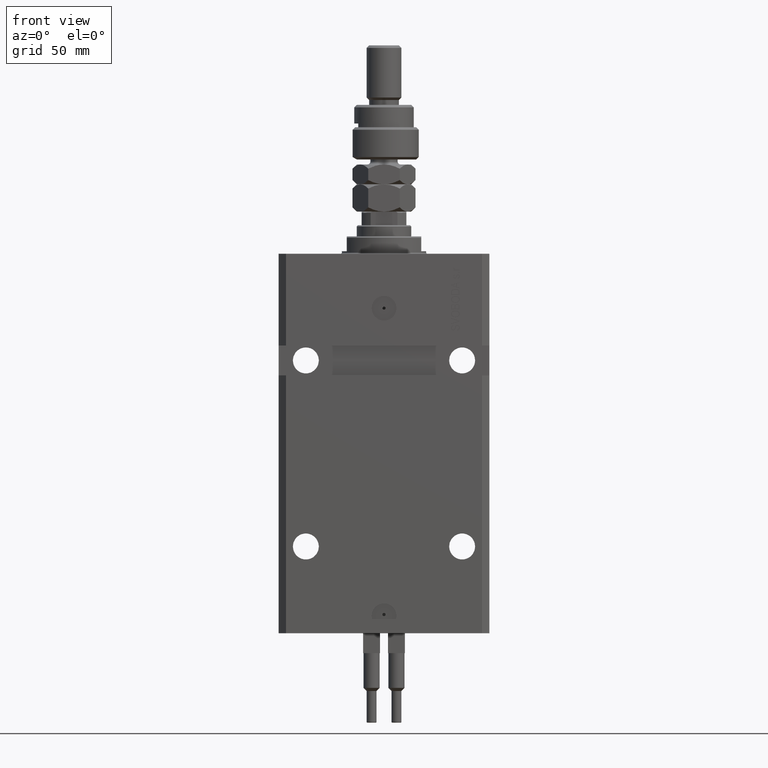
[diagram: clean part render]
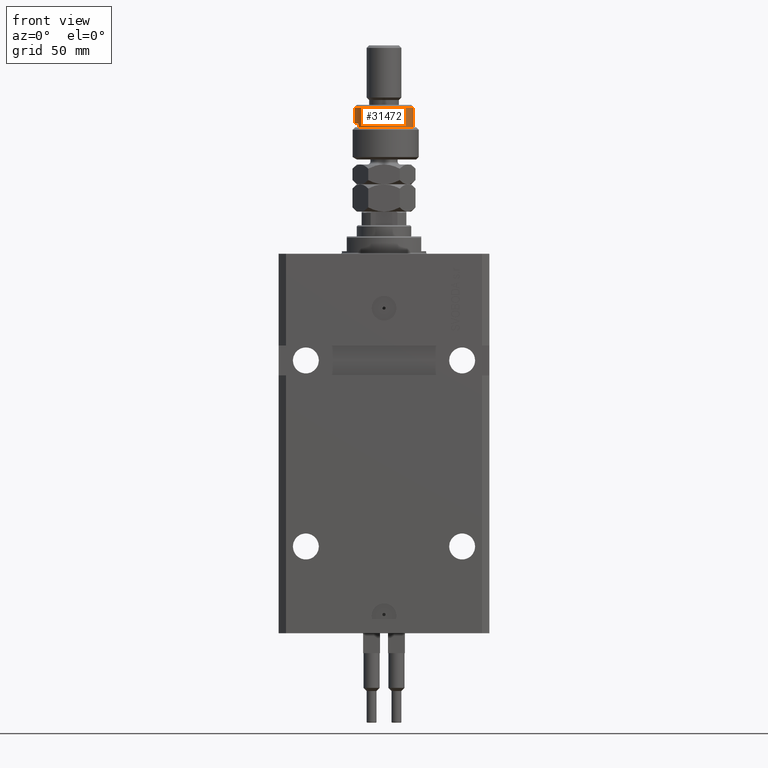
[diagram: same view with one face highlighted and labeled with its STEP entity id]
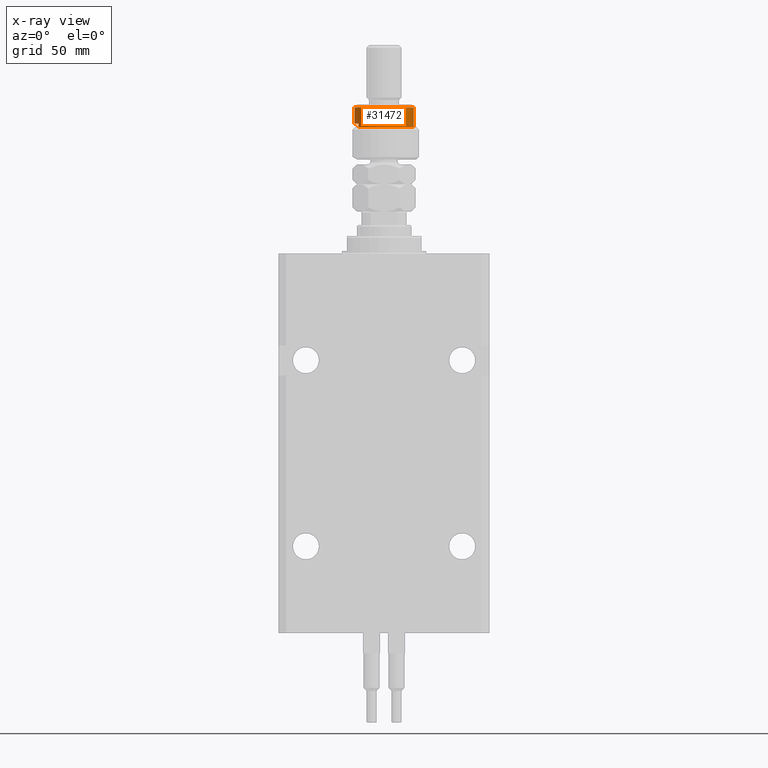
[diagram: x-ray of the same camera — body ghosted, the highlighted face saturated]
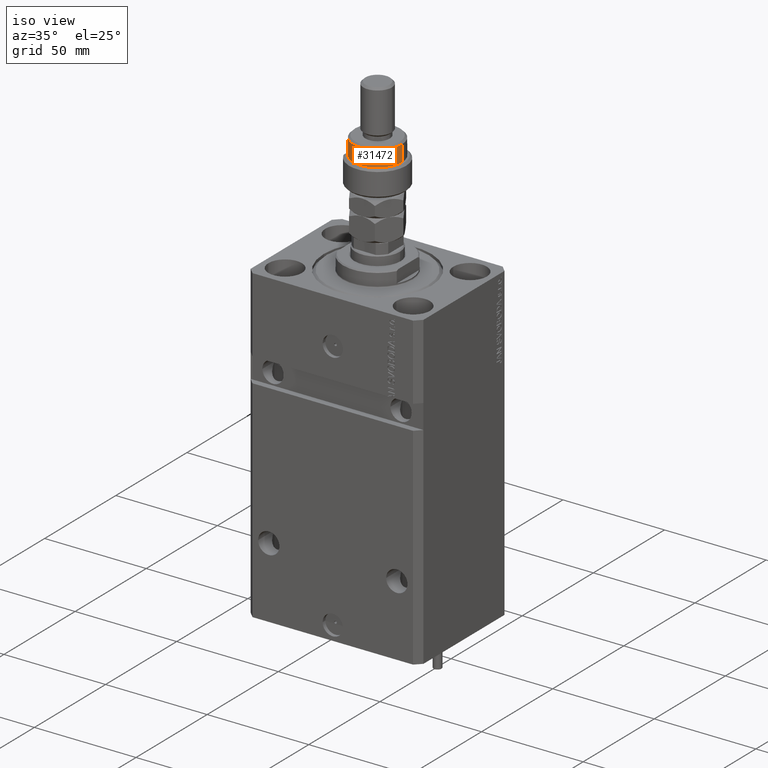
[diagram: same view with one face highlighted and labeled with its STEP entity id]
A machine part, front view. The second image highlights one B-rep face of the part: STEP entity #31472.
The next image is the same camera in x-ray: the body ghosted, the highlighted face saturated — about 0% of this face is hidden behind the body in this view.
A second angle (iso view) of the same face is appended — the face is thin or edge-on in the first view.
In plain terms, the highlighted cylindrical surface (edge-blend (fillet) strip) has radius 12 mm, axis along (-0, -0, -1).
Its self-contained STEP definition (entity closure, byte-faithful):
#60 = FACE_OUTER_BOUND ( 'NONE', #16092, .T. ) ;
#1394 = CARTESIAN_POINT ( 'NONE',  ( 12.00000000000000178, 1.469576158976824144E-15, 22.00000000000000000 ) ) ;
#3241 = AXIS2_PLACEMENT_3D ( 'NONE', #33666, #41815, #33928 ) ;
#3337 = ORIENTED_EDGE ( 'NONE', *, *, #49781, .T. ) ;
#4048 = CIRCLE ( 'NONE', #3241, 12.00000000000000178 ) ;
#4560 = DIRECTION ( 'NONE',  ( -0.000000000000000000, -0.000000000000000000, -1.000000000000000000 ) ) ;
#6366 = VECTOR ( 'NONE', #4560, 1000.000000000000000 ) ;
#10732 = VERTEX_POINT ( 'NONE', #46467 ) ;
#11294 = DIRECTION ( 'NONE',  ( 0.000000000000000000, 0.000000000000000000, -1.000000000000000000 ) ) ;
#11381 = DIRECTION ( 'NONE',  ( -1.000000000000000000, 0.000000000000000000, 0.000000000000000000 ) ) ;
#11597 = AXIS2_PLACEMENT_3D ( 'NONE', #23607, #20204, #48195 ) ;
#13425 = LINE ( 'NONE', #1394, #6366 ) ;
#13644 = ORIENTED_EDGE ( 'NONE', *, *, #30587, .T. ) ;
#13715 = DIRECTION ( 'NONE',  ( -0.000000000000000000, -0.000000000000000000, -1.000000000000000000 ) ) ;
#14792 = CIRCLE ( 'NONE', #45724, 12.00000000000000178 ) ;
#15002 = EDGE_CURVE ( 'NONE', #46389, #24598, #37464, .T. ) ;
#16092 = EDGE_LOOP ( 'NONE', ( #41835, #16229, #29043, #18883, #3337, #13644 ) ) ;
#16229 = ORIENTED_EDGE ( 'NONE', *, *, #24951, .T. ) ;
#18883 = ORIENTED_EDGE ( 'NONE', *, *, #15002, .F. ) ;
#20204 = DIRECTION ( 'NONE',  ( -0.000000000000000000, -0.000000000000000000, -1.000000000000000000 ) ) ;
#22090 = CARTESIAN_POINT ( 'NONE',  ( -12.00000000000000178, 0.000000000000000000, 22.00000000000000000 ) ) ;
#22902 = EDGE_CURVE ( 'NONE', #40850, #26178, #13425, .T. ) ;
#23607 = CARTESIAN_POINT ( 'NONE',  ( 0.000000000000000000, 0.000000000000000000, 22.00000000000000000 ) ) ;
#24598 = VERTEX_POINT ( 'NONE', #31991 ) ;
#24951 = EDGE_CURVE ( 'NONE', #40850, #38210, #14792, .T. ) ;
#25076 = VECTOR ( 'NONE', #25635, 1000.000000000000000 ) ;
#25635 = DIRECTION ( 'NONE',  ( -0.000000000000000000, -0.000000000000000000, -1.000000000000000000 ) ) ;
#26178 = VERTEX_POINT ( 'NONE', #50427 ) ;
#27754 = CARTESIAN_POINT ( 'NONE',  ( 0.000000000000000000, 0.000000000000000000, 20.99999999999999645 ) ) ;
#28027 = CYLINDRICAL_SURFACE ( 'NONE', #11597, 12.00000000000000178 ) ;
#29043 = ORIENTED_EDGE ( 'NONE', *, *, #46629, .T. ) ;
#29933 = LINE ( 'NONE', #22090, #35841 ) ;
#30587 = EDGE_CURVE ( 'NONE', #10732, #26178, #4048, .T. ) ;
#30600 = LINE ( 'NONE', #50510, #25076 ) ;
#31248 = CARTESIAN_POINT ( 'NONE',  ( 0.000000000000000000, 0.000000000000000000, 14.50000000000000000 ) ) ;
#31472 = ADVANCED_FACE ( 'NONE', ( #60 ), #28027, .T. ) ;
#31991 = CARTESIAN_POINT ( 'NONE',  ( -12.00000000000000178, 0.000000000000000000, 14.50000000000000000 ) ) ;
#33666 = CARTESIAN_POINT ( 'NONE',  ( 0.000000000000000000, 0.000000000000000000, 13.00000000000000000 ) ) ;
#33928 = DIRECTION ( 'NONE',  ( 1.000000000000000000, 0.000000000000000000, 0.000000000000000000 ) ) ;
#35797 = AXIS2_PLACEMENT_3D ( 'NONE', #31248, #47237, #11381 ) ;
#35841 = VECTOR ( 'NONE', #13715, 1000.000000000000000 ) ;
#37464 = CIRCLE ( 'NONE', #35797, 12.00000000000000178 ) ;
#38210 = VERTEX_POINT ( 'NONE', #46520 ) ;
#40850 = VERTEX_POINT ( 'NONE', #43459 ) ;
#41815 = DIRECTION ( 'NONE',  ( 0.000000000000000000, 0.000000000000000000, 1.000000000000000000 ) ) ;
#41835 = ORIENTED_EDGE ( 'NONE', *, *, #22902, .F. ) ;
#42966 = DIRECTION ( 'NONE',  ( 1.000000000000000000, 0.000000000000000000, 0.000000000000000000 ) ) ;
#43459 = CARTESIAN_POINT ( 'NONE',  ( 12.00000000000000178, 1.469576158976824144E-15, 20.99999999999999645 ) ) ;
#45724 = AXIS2_PLACEMENT_3D ( 'NONE', #27754, #11294, #42966 ) ;
#45786 = CARTESIAN_POINT ( 'NONE',  ( -10.39230484541326582, -5.999999999999998224, 14.50000000000000000 ) ) ;
#46389 = VERTEX_POINT ( 'NONE', #45786 ) ;
#46467 = CARTESIAN_POINT ( 'NONE',  ( -10.39230484541326760, -6.000000000000000000, 13.00000000000000000 ) ) ;
#46520 = CARTESIAN_POINT ( 'NONE',  ( -12.00000000000000178, 0.000000000000000000, 20.99999999999999645 ) ) ;
#46629 = EDGE_CURVE ( 'NONE', #38210, #24598, #29933, .T. ) ;
#47237 = DIRECTION ( 'NONE',  ( 0.000000000000000000, 0.000000000000000000, -1.000000000000000000 ) ) ;
#48195 = DIRECTION ( 'NONE',  ( -1.000000000000000000, 0.000000000000000000, 0.000000000000000000 ) ) ;
#49781 = EDGE_CURVE ( 'NONE', #46389, #10732, #30600, .T. ) ;
#50427 = CARTESIAN_POINT ( 'NONE',  ( 12.00000000000000178, 1.469576158976824144E-15, 13.00000000000000000 ) ) ;
#50510 = CARTESIAN_POINT ( 'NONE',  ( -10.39230484541326760, -6.000000000000000000, 22.00000000000000000 ) ) ;